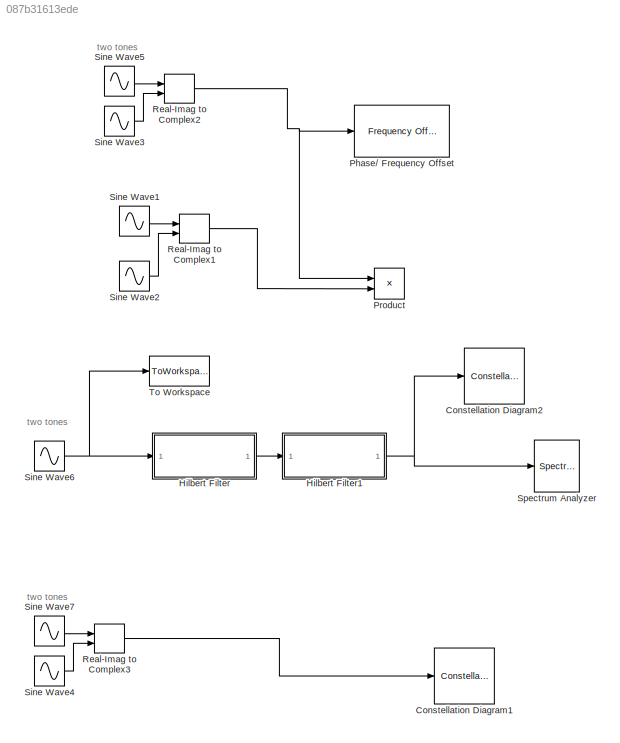
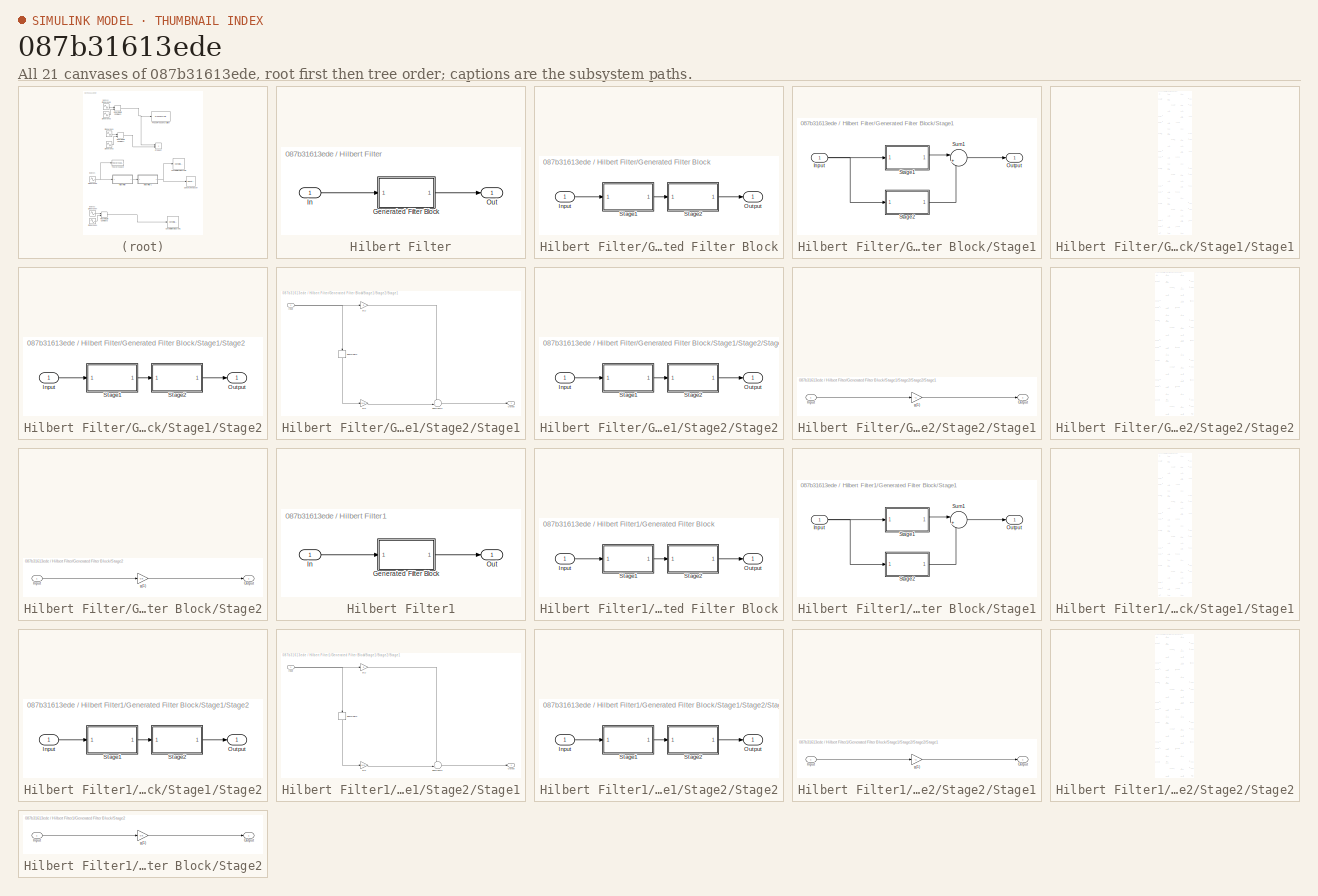
[diagram: thumbnail index - all 21 canvases of the model, root first then tree order]
MODEL slx_087b31613ede
KIND model
BLOCK [ConstellationDiagram] Constellation Diagram1
  Ports = [1]
  ScopeSpecificationString = comm.scopes.ConstellationDiagramBlockCfg('CurrentConfiguration', extmgr.ConfigurationSet(extmgr.Configuration('Core','General UI',true),extmgr.Configuration('Core','Source UI',true),extmgr.Configuration('Sources','WiredSimulink',true),extmgr.Configuration('Sources','Simulink',false),extmgr.Configuration('Sources','File',false),extmgr.Configuration('Sources','Workspace',false),extmgr.Configuration(...<+1687ch>
BLOCK [ConstellationDiagram] Constellation Diagram2
  Ports = [1]
  ScopeSpecificationString = comm.scopes.ConstellationDiagramBlockCfg('CurrentConfiguration', extmgr.ConfigurationSet(extmgr.Configuration('Core','General UI',true),extmgr.Configuration('Core','Source UI',true),extmgr.Configuration('Sources','WiredSimulink',true),extmgr.Configuration('Sources','Simulink',false),extmgr.Configuration('Sources','File',false),extmgr.Configuration('Sources','Workspace',false),extmgr.Configuration(...<+1769ch>
BLOCK [SubSystem] Hilbert Filter
  CopyFcn = fdesignblkfcn(gcbh, {'CopyFcn'});
  DialogController = fdesignblkfcn
  InitFcn = fdesignblkfcn(gcbh, {'InitFcn'});
  Ports = [1, 1]
  RequestExecContextInheritance = off
  UserDataPersistent = on
BLOCK [SubSystem] Hilbert Filter/Generated Filter Block
  Ports = [1, 1]
  RequestExecContextInheritance = off
  Tag = FilterWizardSubSystem
  UserDataPersistent = on
BLOCK [Inport] Hilbert Filter/Generated Filter Block/Input
  IconDisplay = Port number
BLOCK [Outport] Hilbert Filter/Generated Filter Block/Output
  IconDisplay = Port number
BLOCK [SubSystem] Hilbert Filter/Generated Filter Block/Stage1
  Ports = [1, 1]
  RequestExecContextInheritance = off
  Tag = FilterWizardSubSystem
  UserDataPersistent = on
BLOCK [Inport] Hilbert Filter/Generated Filter Block/Stage1/Input
  IconDisplay = Port number
BLOCK [Outport] Hilbert Filter/Generated Filter Block/Stage1/Output
  IconDisplay = Port number
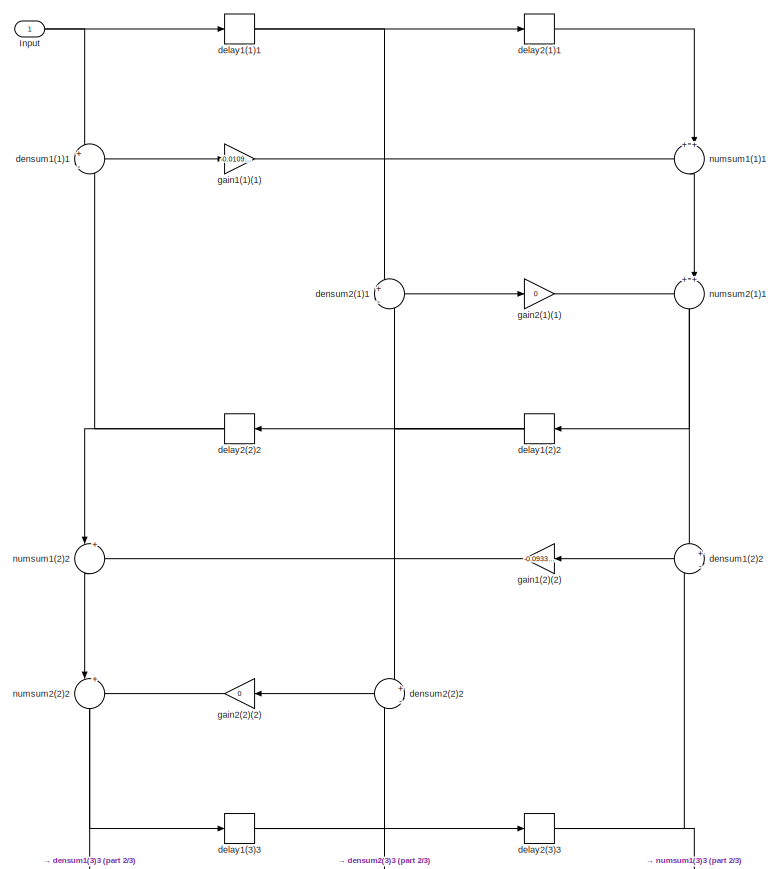
[diagram: Hilbert Filter/Generated Filter Block/Stage1/Stage1 - part 1/3, full width, top band]
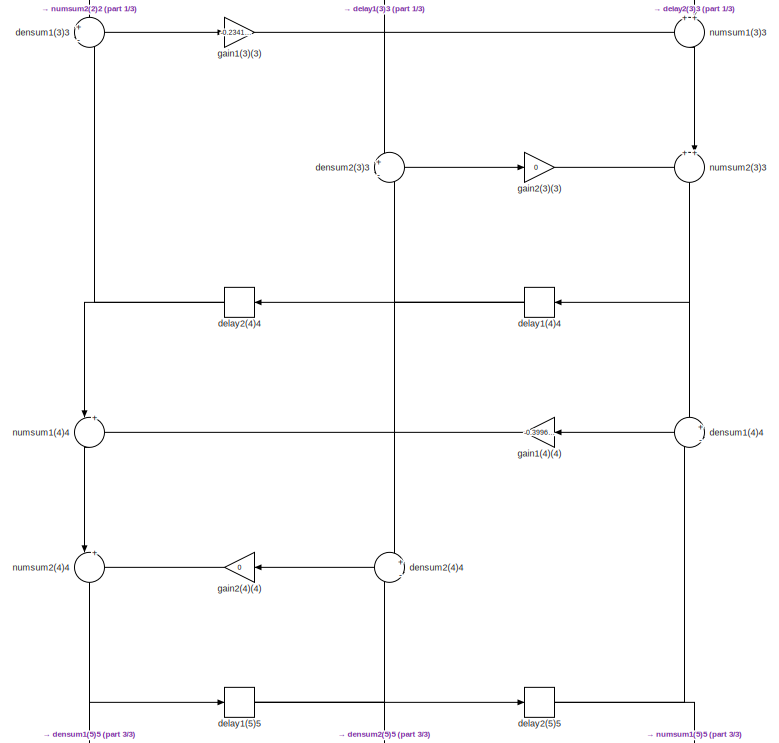
[diagram: Hilbert Filter/Generated Filter Block/Stage1/Stage1 - part 2/3, full width, middle band]
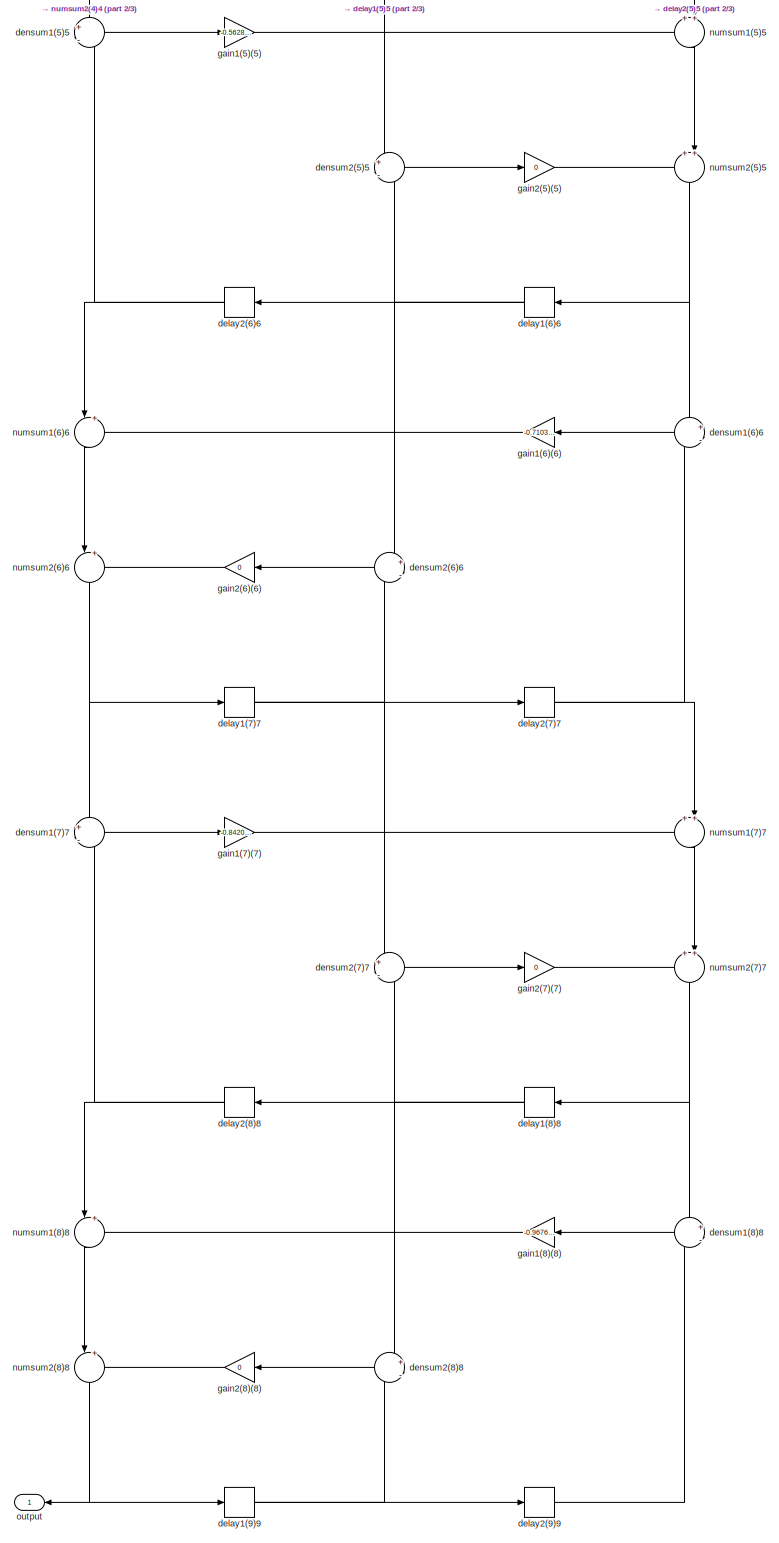
[diagram: Hilbert Filter/Generated Filter Block/Stage1/Stage1 - part 3/3, full width, bottom band]
BLOCK [SubSystem] Hilbert Filter/Generated Filter Block/Stage1/Stage1
  ErrorFcn = dspFilterRealizedInBasicElemsAlgLoopErrFcnCallback
  Ports = [1, 1]
  RequestExecContextInheritance = off
  Tag = FilterWizardSubSystem
  UserDataPersistent = on
BLOCK [Inport] Hilbert Filter/Generated Filter Block/Stage1/Stage1/Input
  IconDisplay = Port number
BLOCK [Delay] Hilbert Filter/Generated Filter Block/Stage1/Stage1/delay1(1)1
  DelayLength = 1
  InitialCondition = 0
  InputPortMap = u0
  Ports = [1, 1]
BLOCK [Delay] Hilbert Filter/Generated Filter Block/Stage1/Stage1/delay1(2)2
  DelayLength = 1
  InitialCondition = 0
  InputPortMap = u0
  Ports = [1, 1]
BLOCK [Delay] Hilbert Filter/Generated Filter Block/Stage1/Stage1/delay1(3)3
  DelayLength = 1
  InitialCondition = 0
  InputPortMap = u0
  Ports = [1, 1]
BLOCK [Delay] Hilbert Filter/Generated Filter Block/Stage1/Stage1/delay1(4)4
  DelayLength = 1
  InitialCondition = 0
  InputPortMap = u0
  Ports = [1, 1]
BLOCK [Delay] Hilbert Filter/Generated Filter Block/Stage1/Stage1/delay1(5)5
  DelayLength = 1
  InitialCondition = 0
  InputPortMap = u0
  Ports = [1, 1]
BLOCK [Delay] Hilbert Filter/Generated Filter Block/Stage1/Stage1/delay1(6)6
  DelayLength = 1
  InitialCondition = 0
  InputPortMap = u0
  Ports = [1, 1]
BLOCK [Delay] Hilbert Filter/Generated Filter Block/Stage1/Stage1/delay1(7)7
  DelayLength = 1
  InitialCondition = 0
  InputPortMap = u0
  Ports = [1, 1]
BLOCK [Delay] Hilbert Filter/Generated Filter Block/Stage1/Stage1/delay1(8)8
  DelayLength = 1
  InitialCondition = 0
  InputPortMap = u0
  Ports = [1, 1]
BLOCK [Delay] Hilbert Filter/Generated Filter Block/Stage1/Stage1/delay1(9)9
  DelayLength = 1
  InitialCondition = 0
  InputPortMap = u0
  Ports = [1, 1]
BLOCK [Delay] Hilbert Filter/Generated Filter Block/Stage1/Stage1/delay2(1)1
  DelayLength = 1
  InitialCondition = 0
  InputPortMap = u0
  Ports = [1, 1]
BLOCK [Delay] Hilbert Filter/Generated Filter Block/Stage1/Stage1/delay2(2)2
  DelayLength = 1
  InitialCondition = 0
  InputPortMap = u0
  Ports = [1, 1]
BLOCK [Delay] Hilbert Filter/Generated Filter Block/Stage1/Stage1/delay2(3)3
  DelayLength = 1
  InitialCondition = 0
  InputPortMap = u0
  Ports = [1, 1]
BLOCK [Delay] Hilbert Filter/Generated Filter Block/Stage1/Stage1/delay2(4)4
  DelayLength = 1
  InitialCondition = 0
  InputPortMap = u0
  Ports = [1, 1]
BLOCK [Delay] Hilbert Filter/Generated Filter Block/Stage1/Stage1/delay2(5)5
  DelayLength = 1
  InitialCondition = 0
  InputPortMap = u0
  Ports = [1, 1]
BLOCK [Delay] Hilbert Filter/Generated Filter Block/Stage1/Stage1/delay2(6)6
  DelayLength = 1
  InitialCondition = 0
  InputPortMap = u0
  Ports = [1, 1]
BLOCK [Delay] Hilbert Filter/Generated Filter Block/Stage1/Stage1/delay2(7)7
  DelayLength = 1
  InitialCondition = 0
  InputPortMap = u0
  Ports = [1, 1]
BLOCK [Delay] Hilbert Filter/Generated Filter Block/Stage1/Stage1/delay2(8)8
  DelayLength = 1
  InitialCondition = 0
  InputPortMap = u0
  Ports = [1, 1]
BLOCK [Delay] Hilbert Filter/Generated Filter Block/Stage1/Stage1/delay2(9)9
  DelayLength = 1
  InitialCondition = 0
  InputPortMap = u0
  Ports = [1, 1]
BLOCK [Sum] Hilbert Filter/Generated Filter Block/Stage1/Stage1/densum1(1)1
  IconShape = round
  InputSameDT = off
  Inputs = +|-
  Ports = [2, 1]
  RndMeth = Nearest
BLOCK [Sum] Hilbert Filter/Generated Filter Block/Stage1/Stage1/densum1(2)2
  IconShape = round
  InputSameDT = off
  Inputs = +|-
  Ports = [2, 1]
  RndMeth = Nearest
BLOCK [Sum] Hilbert Filter/Generated Filter Block/Stage1/Stage1/densum1(3)3
  IconShape = round
  InputSameDT = off
  Inputs = +|-
  Ports = [2, 1]
  RndMeth = Nearest
BLOCK [Sum] Hilbert Filter/Generated Filter Block/Stage1/Stage1/densum1(4)4
  IconShape = round
  InputSameDT = off
  Inputs = +|-
  Ports = [2, 1]
  RndMeth = Nearest
BLOCK [Sum] Hilbert Filter/Generated Filter Block/Stage1/Stage1/densum1(5)5
  IconShape = round
  InputSameDT = off
  Inputs = +|-
  Ports = [2, 1]
  RndMeth = Nearest
BLOCK [Sum] Hilbert Filter/Generated Filter Block/Stage1/Stage1/densum1(6)6
  IconShape = round
  InputSameDT = off
  Inputs = +|-
  Ports = [2, 1]
  RndMeth = Nearest
BLOCK [Sum] Hilbert Filter/Generated Filter Block/Stage1/Stage1/densum1(7)7
  IconShape = round
  InputSameDT = off
  Inputs = +|-
  Ports = [2, 1]
  RndMeth = Nearest
BLOCK [Sum] Hilbert Filter/Generated Filter Block/Stage1/Stage1/densum1(8)8
  IconShape = round
  InputSameDT = off
  Inputs = +|-
  Ports = [2, 1]
  RndMeth = Nearest
BLOCK [Sum] Hilbert Filter/Generated Filter Block/Stage1/Stage1/densum2(1)1
  IconShape = round
  InputSameDT = off
  Inputs = +|-
  Ports = [2, 1]
  RndMeth = Nearest
BLOCK [Sum] Hilbert Filter/Generated Filter Block/Stage1/Stage1/densum2(2)2
  IconShape = round
  InputSameDT = off
  Inputs = +|-
  Ports = [2, 1]
  RndMeth = Nearest
BLOCK [Sum] Hilbert Filter/Generated Filter Block/Stage1/Stage1/densum2(3)3
  IconShape = round
  InputSameDT = off
  Inputs = +|-
  Ports = [2, 1]
  RndMeth = Nearest
BLOCK [Sum] Hilbert Filter/Generated Filter Block/Stage1/Stage1/densum2(4)4
  IconShape = round
  InputSameDT = off
  Inputs = +|-
  Ports = [2, 1]
  RndMeth = Nearest
BLOCK [Sum] Hilbert Filter/Generated Filter Block/Stage1/Stage1/densum2(5)5
  IconShape = round
  InputSameDT = off
  Inputs = +|-
  Ports = [2, 1]
  RndMeth = Nearest
BLOCK [Sum] Hilbert Filter/Generated Filter Block/Stage1/Stage1/densum2(6)6
  IconShape = round
  InputSameDT = off
  Inputs = +|-
  Ports = [2, 1]
  RndMeth = Nearest
BLOCK [Sum] Hilbert Filter/Generated Filter Block/Stage1/Stage1/densum2(7)7
  IconShape = round
  InputSameDT = off
  Inputs = +|-
  Ports = [2, 1]
  RndMeth = Nearest
BLOCK [Sum] Hilbert Filter/Generated Filter Block/Stage1/Stage1/densum2(8)8
  IconShape = round
  InputSameDT = off
  Inputs = +|-
  Ports = [2, 1]
  RndMeth = Nearest
BLOCK [Gain] Hilbert Filter/Generated Filter Block/Stage1/Stage1/gain1(1)(1)
  Gain = -0.010950436973184801
  ParamDataTypeStr = double
  RndMeth = Nearest
BLOCK [Gain] Hilbert Filter/Generated Filter Block/Stage1/Stage1/gain1(2)(2)
  Gain = -0.093334236255435646
  ParamDataTypeStr = double
  RndMeth = Nearest
BLOCK [Gain] Hilbert Filter/Generated Filter Block/Stage1/Stage1/gain1(3)(3)
  Gain = -0.23410977281798603
  ParamDataTypeStr = double
  RndMeth = Nearest
BLOCK [Gain] Hilbert Filter/Generated Filter Block/Stage1/Stage1/gain1(4)(4)
  Gain = -0.399691910960775
  ParamDataTypeStr = double
  RndMeth = Nearest
BLOCK [Gain] Hilbert Filter/Generated Filter Block/Stage1/Stage1/gain1(5)(5)
  Gain = -0.56288910028092354
  ParamDataTypeStr = double
  RndMeth = Nearest
BLOCK [Gain] Hilbert Filter/Generated Filter Block/Stage1/Stage1/gain1(6)(6)
  Gain = -0.71037779161235193
  ParamDataTypeStr = double
  RndMeth = Nearest
BLOCK [Gain] Hilbert Filter/Generated Filter Block/Stage1/Stage1/gain1(7)(7)
  Gain = -0.84203409261411277
  ParamDataTypeStr = double
  RndMeth = Nearest
BLOCK [Gain] Hilbert Filter/Generated Filter Block/Stage1/Stage1/gain1(8)(8)
  Gain = -0.96762108186982065
  ParamDataTypeStr = double
  RndMeth = Nearest
BLOCK [Gain] Hilbert Filter/Generated Filter Block/Stage1/Stage1/gain2(1)(1)
  Gain = 0
  ParamDataTypeStr = double
  RndMeth = Nearest
BLOCK [Gain] Hilbert Filter/Generated Filter Block/Stage1/Stage1/gain2(2)(2)
  Gain = 0
  ParamDataTypeStr = double
  RndMeth = Nearest
BLOCK [Gain] Hilbert Filter/Generated Filter Block/Stage1/Stage1/gain2(3)(3)
  Gain = 0
  ParamDataTypeStr = double
  RndMeth = Nearest
BLOCK [Gain] Hilbert Filter/Generated Filter Block/Stage1/Stage1/gain2(4)(4)
  Gain = 0
  ParamDataTypeStr = double
  RndMeth = Nearest
BLOCK [Gain] Hilbert Filter/Generated Filter Block/Stage1/Stage1/gain2(5)(5)
  Gain = 0
  ParamDataTypeStr = double
  RndMeth = Nearest
BLOCK [Gain] Hilbert Filter/Generated Filter Block/Stage1/Stage1/gain2(6)(6)
  Gain = 0
  ParamDataTypeStr = double
  RndMeth = Nearest
BLOCK [Gain] Hilbert Filter/Generated Filter Block/Stage1/Stage1/gain2(7)(7)
  Gain = 0
  ParamDataTypeStr = double
  RndMeth = Nearest
BLOCK [Gain] Hilbert Filter/Generated Filter Block/Stage1/Stage1/gain2(8)(8)
  Gain = 0
  ParamDataTypeStr = double
  RndMeth = Nearest
BLOCK [Sum] Hilbert Filter/Generated Filter Block/Stage1/Stage1/numsum1(1)1
  IconShape = round
  InputSameDT = off
  Inputs = ++|
  Ports = [2, 1]
  RndMeth = Nearest
BLOCK [Sum] Hilbert Filter/Generated Filter Block/Stage1/Stage1/numsum1(2)2
  IconShape = round
  InputSameDT = off
  Inputs = |++
  Ports = [2, 1]
  RndMeth = Nearest
BLOCK [Sum] Hilbert Filter/Generated Filter Block/Stage1/Stage1/numsum1(3)3
  IconShape = round
  InputSameDT = off
  Inputs = ++|
  Ports = [2, 1]
  RndMeth = Nearest
BLOCK [Sum] Hilbert Filter/Generated Filter Block/Stage1/Stage1/numsum1(4)4
  IconShape = round
  InputSameDT = off
  Inputs = |++
  Ports = [2, 1]
  RndMeth = Nearest
BLOCK [Sum] Hilbert Filter/Generated Filter Block/Stage1/Stage1/numsum1(5)5
  IconShape = round
  InputSameDT = off
  Inputs = ++|
  Ports = [2, 1]
  RndMeth = Nearest
BLOCK [Sum] Hilbert Filter/Generated Filter Block/Stage1/Stage1/numsum1(6)6
  IconShape = round
  InputSameDT = off
  Inputs = |++
  Ports = [2, 1]
  RndMeth = Nearest
BLOCK [Sum] Hilbert Filter/Generated Filter Block/Stage1/Stage1/numsum1(7)7
  IconShape = round
  InputSameDT = off
  Inputs = ++|
  Ports = [2, 1]
  RndMeth = Nearest
BLOCK [Sum] Hilbert Filter/Generated Filter Block/Stage1/Stage1/numsum1(8)8
  IconShape = round
  InputSameDT = off
  Inputs = |++
  Ports = [2, 1]
  RndMeth = Nearest
BLOCK [Sum] Hilbert Filter/Generated Filter Block/Stage1/Stage1/numsum2(1)1
  IconShape = round
  InputSameDT = off
  Inputs = ++|
  Ports = [2, 1]
  RndMeth = Nearest
BLOCK [Sum] Hilbert Filter/Generated Filter Block/Stage1/Stage1/numsum2(2)2
  IconShape = round
  InputSameDT = off
  Inputs = |++
  Ports = [2, 1]
  RndMeth = Nearest
BLOCK [Sum] Hilbert Filter/Generated Filter Block/Stage1/Stage1/numsum2(3)3
  IconShape = round
  InputSameDT = off
  Inputs = ++|
  Ports = [2, 1]
  RndMeth = Nearest
BLOCK [Sum] Hilbert Filter/Generated Filter Block/Stage1/Stage1/numsum2(4)4
  IconShape = round
  InputSameDT = off
  Inputs = |++
  Ports = [2, 1]
  RndMeth = Nearest
BLOCK [Sum] Hilbert Filter/Generated Filter Block/Stage1/Stage1/numsum2(5)5
  IconShape = round
  InputSameDT = off
  Inputs = ++|
  Ports = [2, 1]
  RndMeth = Nearest
BLOCK [Sum] Hilbert Filter/Generated Filter Block/Stage1/Stage1/numsum2(6)6
  IconShape = round
  InputSameDT = off
  Inputs = |++
  Ports = [2, 1]
  RndMeth = Nearest
BLOCK [Sum] Hilbert Filter/Generated Filter Block/Stage1/Stage1/numsum2(7)7
  IconShape = round
  InputSameDT = off
  Inputs = ++|
  Ports = [2, 1]
  RndMeth = Nearest
BLOCK [Sum] Hilbert Filter/Generated Filter Block/Stage1/Stage1/numsum2(8)8
  IconShape = round
  InputSameDT = off
  Inputs = |++
  Ports = [2, 1]
  RndMeth = Nearest
BLOCK [Outport] Hilbert Filter/Generated Filter Block/Stage1/Stage1/output
  IconDisplay = Port number
BLOCK [SubSystem] Hilbert Filter/Generated Filter Block/Stage1/Stage2
  Ports = [1, 1]
  RequestExecContextInheritance = off
  Tag = FilterWizardSubSystem
  UserDataPersistent = on
BLOCK [Inport] Hilbert Filter/Generated Filter Block/Stage1/Stage2/Input
  IconDisplay = Port number
BLOCK [Outport] Hilbert Filter/Generated Filter Block/Stage1/Stage2/Output
  IconDisplay = Port number
BLOCK [SubSystem] Hilbert Filter/Generated Filter Block/Stage1/Stage2/Stage1
  ErrorFcn = dspFilterRealizedInBasicElemsAlgLoopErrFcnCallback
  Ports = [1, 1]
  RequestExecContextInheritance = off
  Tag = FilterWizardSubSystem
  UserDataPersistent = on
BLOCK [Delay] Hilbert Filter/Generated Filter Block/Stage1/Stage2/Stage1/BodyDelay2
  DelayLength = 1
  InitialCondition = 0
  InputPortMap = u0
  Ports = [1, 1]
BLOCK [Sum] Hilbert Filter/Generated Filter Block/Stage1/Stage2/Stage1/BodyLSum2
  IconShape = round
  InputSameDT = off
  Inputs = ++|
  Ports = [2, 1]
  RndMeth = Nearest
BLOCK [Inport] Hilbert Filter/Generated Filter Block/Stage1/Stage2/Stage1/Input
  IconDisplay = Port number
BLOCK [Outport] Hilbert Filter/Generated Filter Block/Stage1/Stage2/Stage1/Output
  IconDisplay = Port number
BLOCK [Gain] Hilbert Filter/Generated Filter Block/Stage1/Stage2/Stage1/b(1)
  Gain = 0
  ParamDataTypeStr = double
  RndMeth = Nearest
BLOCK [Gain] Hilbert Filter/Generated Filter Block/Stage1/Stage2/Stage1/b(2)
  Gain = 0+1i
  ParamDataTypeStr = double
  RndMeth = Nearest
BLOCK [SubSystem] Hilbert Filter/Generated Filter Block/Stage1/Stage2/Stage2
  Ports = [1, 1]
  RequestExecContextInheritance = off
  Tag = FilterWizardSubSystem
  UserDataPersistent = on
BLOCK [Inport] Hilbert Filter/Generated Filter Block/Stage1/Stage2/Stage2/Input
  IconDisplay = Port number
BLOCK [Outport] Hilbert Filter/Generated Filter Block/Stage1/Stage2/Stage2/Output
  IconDisplay = Port number
BLOCK [SubSystem] Hilbert Filter/Generated Filter Block/Stage1/Stage2/Stage2/Stage1
  ErrorFcn = dspFilterRealizedInBasicElemsAlgLoopErrFcnCallback
  Ports = [1, 1]
  RequestExecContextInheritance = off
  Tag = FilterWizardSubSystem
  UserDataPersistent = on
BLOCK [Inport] Hilbert Filter/Generated Filter Block/Stage1/Stage2/Stage2/Stage1/Input
  IconDisplay = Port number
BLOCK [Outport] Hilbert Filter/Generated Filter Block/Stage1/Stage2/Stage2/Stage1/Output
  IconDisplay = Port number
BLOCK [Gain] Hilbert Filter/Generated Filter Block/Stage1/Stage2/Stage2/Stage1/g(1)
  Gain = -1
  ParamDataTypeStr = double
  RndMeth = Nearest
BLOCK [SubSystem] Hilbert Filter/Generated Filter Block/Stage1/Stage2/Stage2/Stage2
  ErrorFcn = dspFilterRealizedInBasicElemsAlgLoopErrFcnCallback
  Ports = [1, 1]
  RequestExecContextInheritance = off
  Tag = FilterWizardSubSystem
  UserDataPersistent = on
BLOCK [Inport] Hilbert Filter/Generated Filter Block/Stage1/Stage2/Stage2/Stage2/Input
  IconDisplay = Port number
BLOCK [Delay] Hilbert Filter/Generated Filter Block/Stage1/Stage2/Stage2/Stage2/delay1(1)1
  DelayLength = 1
  InitialCondition = 0
  InputPortMap = u0
  Ports = [1, 1]
BLOCK [Delay] Hilbert Filter/Generated Filter Block/Stage1/Stage2/Stage2/Stage2/delay1(2)2
  DelayLength = 1
  InitialCondition = 0
  InputPortMap = u0
  Ports = [1, 1]
BLOCK [Delay] Hilbert Filter/Generated Filter Block/Stage1/Stage2/Stage2/Stage2/delay1(3)3
  DelayLength = 1
  InitialCondition = 0
  InputPortMap = u0
  Ports = [1, 1]
BLOCK [Delay] Hilbert Filter/Generated Filter Block/Stage1/Stage2/Stage2/Stage2/delay1(4)4
  DelayLength = 1
  InitialCondition = 0
  InputPortMap = u0
  Ports = [1, 1]
BLOCK [Delay] Hilbert Filter/Generated Filter Block/Stage1/Stage2/Stage2/Stage2/delay1(5)5
  DelayLength = 1
  InitialCondition = 0
  InputPortMap = u0
  Ports = [1, 1]
BLOCK [Delay] Hilbert Filter/Generated Filter Block/Stage1/Stage2/Stage2/Stage2/delay1(6)6
  DelayLength = 1
  InitialCondition = 0
  InputPortMap = u0
  Ports = [1, 1]
BLOCK [Delay] Hilbert Filter/Generated Filter Block/Stage1/Stage2/Stage2/Stage2/delay1(7)7
  DelayLength = 1
  InitialCondition = 0
  InputPortMap = u0
  Ports = [1, 1]
BLOCK [Delay] Hilbert Filter/Generated Filter Block/Stage1/Stage2/Stage2/Stage2/delay1(8)8
  DelayLength = 1
  InitialCondition = 0
  InputPortMap = u0
  Ports = [1, 1]
BLOCK [Delay] Hilbert Filter/Generated Filter Block/Stage1/Stage2/Stage2/Stage2/delay2(1)1
  DelayLength = 1
  InitialCondition = 0
  InputPortMap = u0
  Ports = [1, 1]
BLOCK [Delay] Hilbert Filter/Generated Filter Block/Stage1/Stage2/Stage2/Stage2/delay2(2)2
  DelayLength = 1
  InitialCondition = 0
  InputPortMap = u0
  Ports = [1, 1]
BLOCK [Delay] Hilbert Filter/Generated Filter Block/Stage1/Stage2/Stage2/Stage2/delay2(3)3
  DelayLength = 1
  InitialCondition = 0
  InputPortMap = u0
  Ports = [1, 1]
BLOCK [Delay] Hilbert Filter/Generated Filter Block/Stage1/Stage2/Stage2/Stage2/delay2(4)4
  DelayLength = 1
  InitialCondition = 0
  InputPortMap = u0
  Ports = [1, 1]
BLOCK [Delay] Hilbert Filter/Generated Filter Block/Stage1/Stage2/Stage2/Stage2/delay2(5)5
  DelayLength = 1
  InitialCondition = 0
  InputPortMap = u0
  Ports = [1, 1]
BLOCK [Delay] Hilbert Filter/Generated Filter Block/Stage1/Stage2/Stage2/Stage2/delay2(6)6
  DelayLength = 1
  InitialCondition = 0
  InputPortMap = u0
  Ports = [1, 1]
BLOCK [Delay] Hilbert Filter/Generated Filter Block/Stage1/Stage2/Stage2/Stage2/delay2(7)7
  DelayLength = 1
  InitialCondition = 0
  InputPortMap = u0
  Ports = [1, 1]
BLOCK [Delay] Hilbert Filter/Generated Filter Block/Stage1/Stage2/Stage2/Stage2/delay2(8)8
  DelayLength = 1
  InitialCondition = 0
  InputPortMap = u0
  Ports = [1, 1]
BLOCK [Sum] Hilbert Filter/Generated Filter Block/Stage1/Stage2/Stage2/Stage2/densum1(1)1
  IconShape = round
  InputSameDT = off
  Inputs = +|-
  Ports = [2, 1]
  RndMeth = Nearest
BLOCK [Sum] Hilbert Filter/Generated Filter Block/Stage1/Stage2/Stage2/Stage2/densum1(2)2
  IconShape = round
  InputSameDT = off
  Inputs = +|-
  Ports = [2, 1]
  RndMeth = Nearest
BLOCK [Sum] Hilbert Filter/Generated Filter Block/Stage1/Stage2/Stage2/Stage2/densum1(3)3
  IconShape = round
  InputSameDT = off
  Inputs = +|-
  Ports = [2, 1]
  RndMeth = Nearest
BLOCK [Sum] Hilbert Filter/Generated Filter Block/Stage1/Stage2/Stage2/Stage2/densum1(4)4
  IconShape = round
  InputSameDT = off
  Inputs = +|-
  Ports = [2, 1]
  RndMeth = Nearest
BLOCK [Sum] Hilbert Filter/Generated Filter Block/Stage1/Stage2/Stage2/Stage2/densum1(5)5
  IconShape = round
  InputSameDT = off
  Inputs = +|-
  Ports = [2, 1]
  RndMeth = Nearest
BLOCK [Sum] Hilbert Filter/Generated Filter Block/Stage1/Stage2/Stage2/Stage2/densum1(6)6
  IconShape = round
  InputSameDT = off
  Inputs = +|-
  Ports = [2, 1]
  RndMeth = Nearest
BLOCK [Sum] Hilbert Filter/Generated Filter Block/Stage1/Stage2/Stage2/Stage2/densum1(7)7
  IconShape = round
  InputSameDT = off
  Inputs = +|-
  Ports = [2, 1]
  RndMeth = Nearest
BLOCK [Sum] Hilbert Filter/Generated Filter Block/Stage1/Stage2/Stage2/Stage2/densum2(1)1
  IconShape = round
  InputSameDT = off
  Inputs = +|-
  Ports = [2, 1]
  RndMeth = Nearest
BLOCK [Sum] Hilbert Filter/Generated Filter Block/Stage1/Stage2/Stage2/Stage2/densum2(2)2
  IconShape = round
  InputSameDT = off
  Inputs = +|-
  Ports = [2, 1]
  RndMeth = Nearest
BLOCK [Sum] Hilbert Filter/Generated Filter Block/Stage1/Stage2/Stage2/Stage2/densum2(3)3
  IconShape = round
  InputSameDT = off
  Inputs = +|-
  Ports = [2, 1]
  RndMeth = Nearest
BLOCK [Sum] Hilbert Filter/Generated Filter Block/Stage1/Stage2/Stage2/Stage2/densum2(4)4
  IconShape = round
  InputSameDT = off
  Inputs = +|-
  Ports = [2, 1]
  RndMeth = Nearest
BLOCK [Sum] Hilbert Filter/Generated Filter Block/Stage1/Stage2/Stage2/Stage2/densum2(5)5
  IconShape = round
  InputSameDT = off
  Inputs = +|-
  Ports = [2, 1]
  RndMeth = Nearest
BLOCK [Sum] Hilbert Filter/Generated Filter Block/Stage1/Stage2/Stage2/Stage2/densum2(6)6
  IconShape = round
  InputSameDT = off
  Inputs = +|-
  Ports = [2, 1]
  RndMeth = Nearest
BLOCK [Sum] Hilbert Filter/Generated Filter Block/Stage1/Stage2/Stage2/Stage2/densum2(7)7
  IconShape = round
  InputSameDT = off
  Inputs = +|-
  Ports = [2, 1]
  RndMeth = Nearest
BLOCK [Gain] Hilbert Filter/Generated Filter Block/Stage1/Stage2/Stage2/Stage2/gain1(1)(1)
  Gain = -0.042904944031649322
  ParamDataTypeStr = double
  RndMeth = Nearest
BLOCK [Gain] Hilbert Filter/Generated Filter Block/Stage1/Stage2/Stage2/Stage2/gain1(2)(2)
  Gain = -0.15851285525238301
  ParamDataTypeStr = double
  RndMeth = Nearest
BLOCK [Gain] Hilbert Filter/Generated Filter Block/Stage1/Stage2/Stage2/Stage2/gain1(3)(3)
  Gain = -0.31578769921985456
  ParamDataTypeStr = double
  RndMeth = Nearest
BLOCK [Gain] Hilbert Filter/Generated Filter Block/Stage1/Stage2/Stage2/Stage2/gain1(4)(4)
  Gain = -0.48276583745472768
  ParamDataTypeStr = double
  RndMeth = Nearest
BLOCK [Gain] Hilbert Filter/Generated Filter Block/Stage1/Stage2/Stage2/Stage2/gain1(5)(5)
  Gain = -0.63887449831122922
  ParamDataTypeStr = double
  RndMeth = Nearest
BLOCK [Gain] Hilbert Filter/Generated Filter Block/Stage1/Stage2/Stage2/Stage2/gain1(6)(6)
  Gain = -0.77777288596986116
  ParamDataTypeStr = double
  RndMeth = Nearest
BLOCK [Gain] Hilbert Filter/Generated Filter Block/Stage1/Stage2/Stage2/Stage2/gain1(7)(7)
  Gain = -0.90465457400821292
  ParamDataTypeStr = double
  RndMeth = Nearest
BLOCK [Gain] Hilbert Filter/Generated Filter Block/Stage1/Stage2/Stage2/Stage2/gain2(1)(1)
  Gain = 0
  ParamDataTypeStr = double
  RndMeth = Nearest
BLOCK [Gain] Hilbert Filter/Generated Filter Block/Stage1/Stage2/Stage2/Stage2/gain2(2)(2)
  Gain = 0
  ParamDataTypeStr = double
  RndMeth = Nearest
BLOCK [Gain] Hilbert Filter/Generated Filter Block/Stage1/Stage2/Stage2/Stage2/gain2(3)(3)
  Gain = 0
  ParamDataTypeStr = double
  RndMeth = Nearest
BLOCK [Gain] Hilbert Filter/Generated Filter Block/Stage1/Stage2/Stage2/Stage2/gain2(4)(4)
  Gain = 0
  ParamDataTypeStr = double
  RndMeth = Nearest
BLOCK [Gain] Hilbert Filter/Generated Filter Block/Stage1/Stage2/Stage2/Stage2/gain2(5)(5)
  Gain = 0
  ParamDataTypeStr = double
  RndMeth = Nearest
BLOCK [Gain] Hilbert Filter/Generated Filter Block/Stage1/Stage2/Stage2/Stage2/gain2(6)(6)
  Gain = 0
  ParamDataTypeStr = double
  RndMeth = Nearest
BLOCK [Gain] Hilbert Filter/Generated Filter Block/Stage1/Stage2/Stage2/Stage2/gain2(7)(7)
  Gain = 0
  ParamDataTypeStr = double
  RndMeth = Nearest
BLOCK [Sum] Hilbert Filter/Generated Filter Block/Stage1/Stage2/Stage2/Stage2/numsum1(1)1
  IconShape = round
  InputSameDT = off
  Inputs = ++|
  Ports = [2, 1]
  RndMeth = Nearest
BLOCK [Sum] Hilbert Filter/Generated Filter Block/Stage1/Stage2/Stage2/Stage2/numsum1(2)2
  IconShape = round
  InputSameDT = off
  Inputs = |++
  Ports = [2, 1]
  RndMeth = Nearest
BLOCK [Sum] Hilbert Filter/Generated Filter Block/Stage1/Stage2/Stage2/Stage2/numsum1(3)3
  IconShape = round
  InputSameDT = off
  Inputs = ++|
  Ports = [2, 1]
  RndMeth = Nearest
BLOCK [Sum] Hilbert Filter/Generated Filter Block/Stage1/Stage2/Stage2/Stage2/numsum1(4)4
  IconShape = round
  InputSameDT = off
  Inputs = |++
  Ports = [2, 1]
  RndMeth = Nearest
BLOCK [Sum] Hilbert Filter/Generated Filter Block/Stage1/Stage2/Stage2/Stage2/numsum1(5)5
  IconShape = round
  InputSameDT = off
  Inputs = ++|
  Ports = [2, 1]
  RndMeth = Nearest
BLOCK [Sum] Hilbert Filter/Generated Filter Block/Stage1/Stage2/Stage2/Stage2/numsum1(6)6
  IconShape = round
  InputSameDT = off
  Inputs = |++
  Ports = [2, 1]
  RndMeth = Nearest
BLOCK [Sum] Hilbert Filter/Generated Filter Block/Stage1/Stage2/Stage2/Stage2/numsum1(7)7
  IconShape = round
  InputSameDT = off
  Inputs = ++|
  Ports = [2, 1]
  RndMeth = Nearest
BLOCK [Sum] Hilbert Filter/Generated Filter Block/Stage1/Stage2/Stage2/Stage2/numsum2(1)1
  IconShape = round
  InputSameDT = off
  Inputs = ++|
  Ports = [2, 1]
  RndMeth = Nearest
BLOCK [Sum] Hilbert Filter/Generated Filter Block/Stage1/Stage2/Stage2/Stage2/numsum2(2)2
  IconShape = round
  InputSameDT = off
  Inputs = |++
  Ports = [2, 1]
  RndMeth = Nearest
BLOCK [Sum] Hilbert Filter/Generated Filter Block/Stage1/Stage2/Stage2/Stage2/numsum2(3)3
  IconShape = round
  InputSameDT = off
  Inputs = ++|
  Ports = [2, 1]
  RndMeth = Nearest
BLOCK [Sum] Hilbert Filter/Generated Filter Block/Stage1/Stage2/Stage2/Stage2/numsum2(4)4
  IconShape = round
  InputSameDT = off
  Inputs = |++
  Ports = [2, 1]
  RndMeth = Nearest
BLOCK [Sum] Hilbert Filter/Generated Filter Block/Stage1/Stage2/Stage2/Stage2/numsum2(5)5
  IconShape = round
  InputSameDT = off
  Inputs = ++|
  Ports = [2, 1]
  RndMeth = Nearest
BLOCK [Sum] Hilbert Filter/Generated Filter Block/Stage1/Stage2/Stage2/Stage2/numsum2(6)6
  IconShape = round
  InputSameDT = off
  Inputs = |++
  Ports = [2, 1]
  RndMeth = Nearest
BLOCK [Sum] Hilbert Filter/Generated Filter Block/Stage1/Stage2/Stage2/Stage2/numsum2(7)7
  IconShape = round
  InputSameDT = off
  Inputs = ++|
  Ports = [2, 1]
  RndMeth = Nearest
BLOCK [Outport] Hilbert Filter/Generated Filter Block/Stage1/Stage2/Stage2/Stage2/output
  IconDisplay = Port number
BLOCK [Sum] Hilbert Filter/Generated Filter Block/Stage1/Sum1
  IconShape = round
  InputSameDT = off
  Inputs = |++
  Ports = [2, 1]
  RndMeth = Nearest
BLOCK [SubSystem] Hilbert Filter/Generated Filter Block/Stage2
  ErrorFcn = dspFilterRealizedInBasicElemsAlgLoopErrFcnCallback
  Ports = [1, 1]
  RequestExecContextInheritance = off
  Tag = FilterWizardSubSystem
  UserDataPersistent = on
BLOCK [Inport] Hilbert Filter/Generated Filter Block/Stage2/Input
  IconDisplay = Port number
BLOCK [Outport] Hilbert Filter/Generated Filter Block/Stage2/Output
  IconDisplay = Port number
BLOCK [Gain] Hilbert Filter/Generated Filter Block/Stage2/g(1)
  Gain = 0.5
  ParamDataTypeStr = double
  RndMeth = Nearest
BLOCK [Inport] Hilbert Filter/In
  IconDisplay = Port number
BLOCK [Outport] Hilbert Filter/Out
  IconDisplay = Port number
BLOCK [SubSystem] Hilbert Filter1
  CopyFcn = fdesignblkfcn(gcbh, {'CopyFcn'});
  DialogController = fdesignblkfcn
  InitFcn = fdesignblkfcn(gcbh, {'InitFcn'});
  Ports = [1, 1]
  RequestExecContextInheritance = off
  UserDataPersistent = on
BLOCK [SubSystem] Hilbert Filter1/Generated Filter Block
  Ports = [1, 1]
  RequestExecContextInheritance = off
  Tag = FilterWizardSubSystem
  UserDataPersistent = on
BLOCK [Inport] Hilbert Filter1/Generated Filter Block/Input
  IconDisplay = Port number
BLOCK [Outport] Hilbert Filter1/Generated Filter Block/Output
  IconDisplay = Port number
BLOCK [SubSystem] Hilbert Filter1/Generated Filter Block/Stage1
  Ports = [1, 1]
  RequestExecContextInheritance = off
  Tag = FilterWizardSubSystem
  UserDataPersistent = on
BLOCK [Inport] Hilbert Filter1/Generated Filter Block/Stage1/Input
  IconDisplay = Port number
BLOCK [Outport] Hilbert Filter1/Generated Filter Block/Stage1/Output
  IconDisplay = Port number
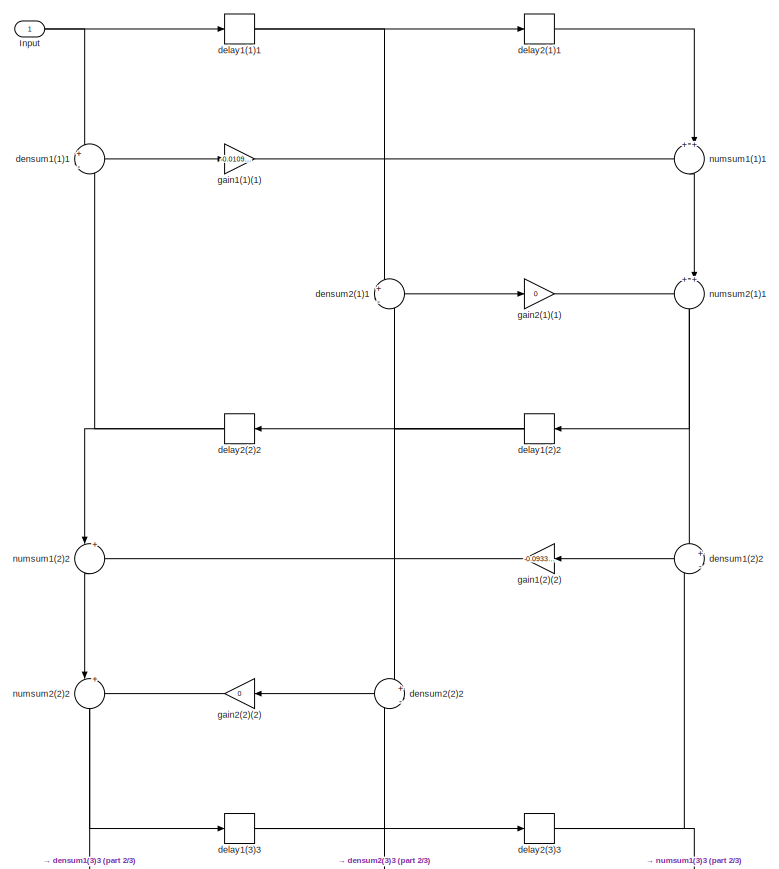
[diagram: Hilbert Filter1/Generated Filter Block/Stage1/Stage1 - part 1/3, full width, top band]
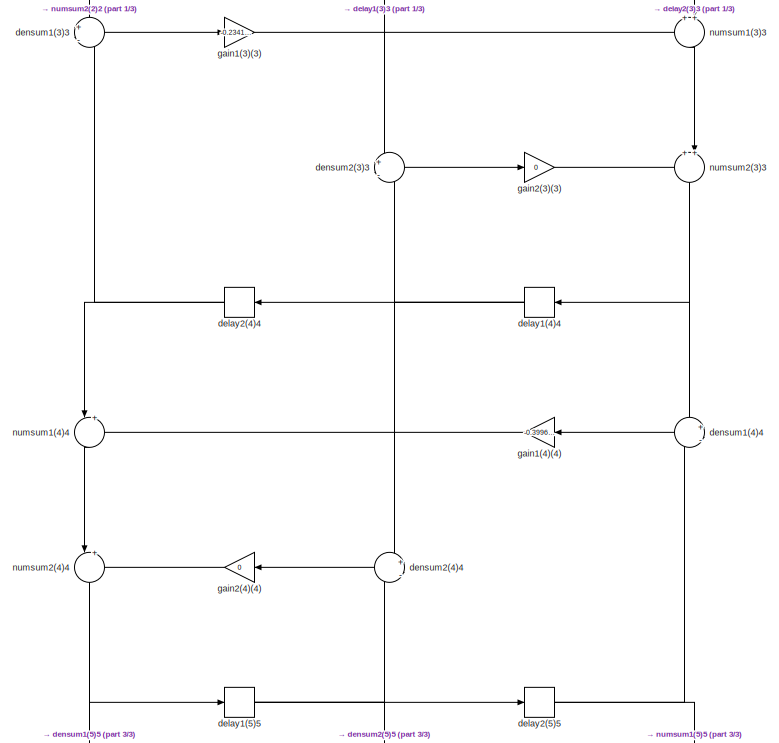
[diagram: Hilbert Filter1/Generated Filter Block/Stage1/Stage1 - part 2/3, full width, middle band]
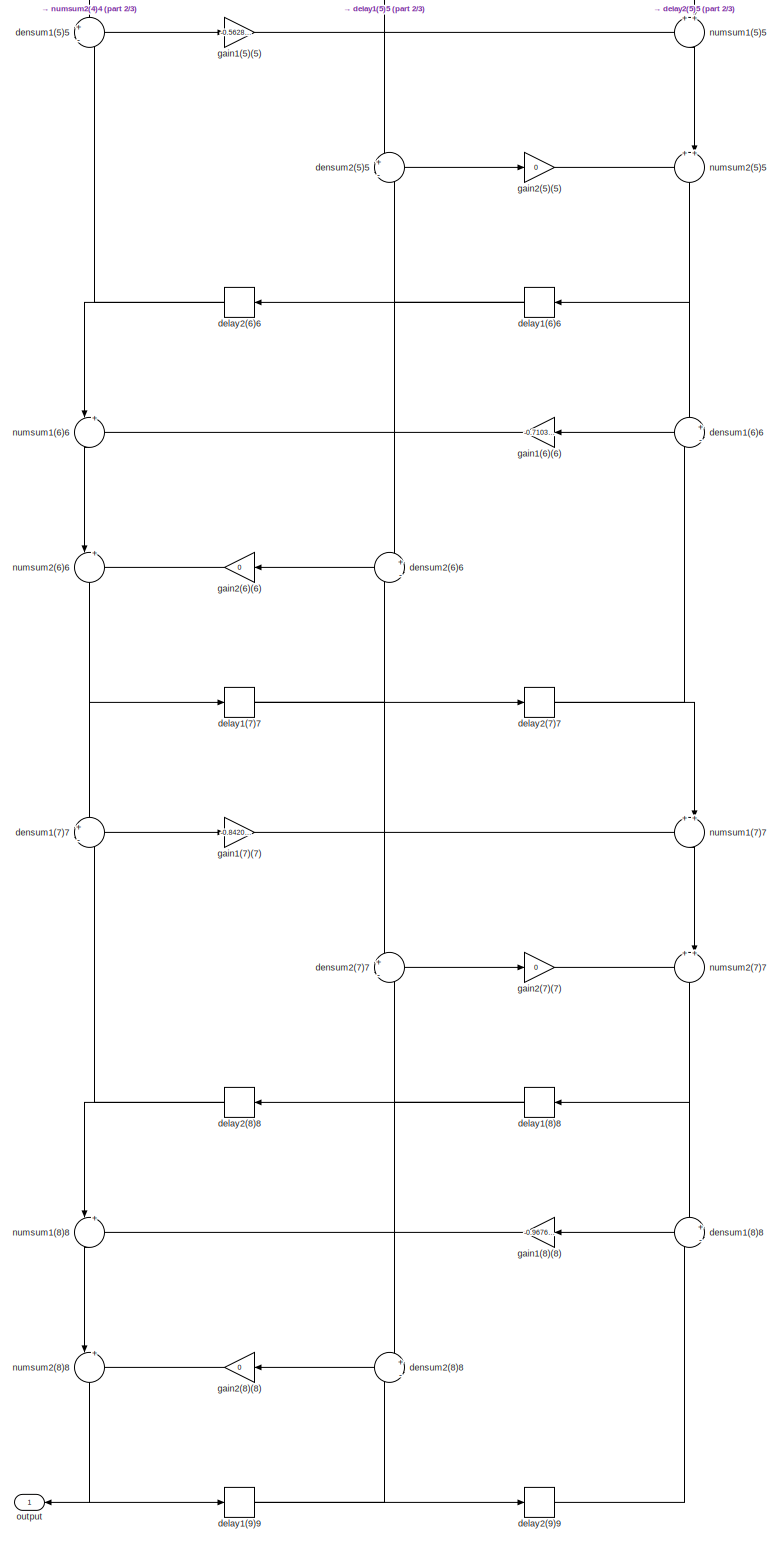
[diagram: Hilbert Filter1/Generated Filter Block/Stage1/Stage1 - part 3/3, full width, bottom band]
BLOCK [SubSystem] Hilbert Filter1/Generated Filter Block/Stage1/Stage1
  ErrorFcn = dspFilterRealizedInBasicElemsAlgLoopErrFcnCallback
  Ports = [1, 1]
  RequestExecContextInheritance = off
  Tag = FilterWizardSubSystem
  UserDataPersistent = on
BLOCK [Inport] Hilbert Filter1/Generated Filter Block/Stage1/Stage1/Input
  IconDisplay = Port number
BLOCK [Delay] Hilbert Filter1/Generated Filter Block/Stage1/Stage1/delay1(1)1
  DelayLength = 1
  InitialCondition = 0
  InputPortMap = u0
  Ports = [1, 1]
BLOCK [Delay] Hilbert Filter1/Generated Filter Block/Stage1/Stage1/delay1(2)2
  DelayLength = 1
  InitialCondition = 0
  InputPortMap = u0
  Ports = [1, 1]
BLOCK [Delay] Hilbert Filter1/Generated Filter Block/Stage1/Stage1/delay1(3)3
  DelayLength = 1
  InitialCondition = 0
  InputPortMap = u0
  Ports = [1, 1]
BLOCK [Delay] Hilbert Filter1/Generated Filter Block/Stage1/Stage1/delay1(4)4
  DelayLength = 1
  InitialCondition = 0
  InputPortMap = u0
  Ports = [1, 1]
BLOCK [Delay] Hilbert Filter1/Generated Filter Block/Stage1/Stage1/delay1(5)5
  DelayLength = 1
  InitialCondition = 0
  InputPortMap = u0
  Ports = [1, 1]
BLOCK [Delay] Hilbert Filter1/Generated Filter Block/Stage1/Stage1/delay1(6)6
  DelayLength = 1
  InitialCondition = 0
  InputPortMap = u0
  Ports = [1, 1]
BLOCK [Delay] Hilbert Filter1/Generated Filter Block/Stage1/Stage1/delay1(7)7
  DelayLength = 1
  InitialCondition = 0
  InputPortMap = u0
  Ports = [1, 1]
BLOCK [Delay] Hilbert Filter1/Generated Filter Block/Stage1/Stage1/delay1(8)8
  DelayLength = 1
  InitialCondition = 0
  InputPortMap = u0
  Ports = [1, 1]
BLOCK [Delay] Hilbert Filter1/Generated Filter Block/Stage1/Stage1/delay1(9)9
  DelayLength = 1
  InitialCondition = 0
  InputPortMap = u0
  Ports = [1, 1]
BLOCK [Delay] Hilbert Filter1/Generated Filter Block/Stage1/Stage1/delay2(1)1
  DelayLength = 1
  InitialCondition = 0
  InputPortMap = u0
  Ports = [1, 1]
BLOCK [Delay] Hilbert Filter1/Generated Filter Block/Stage1/Stage1/delay2(2)2
  DelayLength = 1
  InitialCondition = 0
  InputPortMap = u0
  Ports = [1, 1]
BLOCK [Delay] Hilbert Filter1/Generated Filter Block/Stage1/Stage1/delay2(3)3
  DelayLength = 1
  InitialCondition = 0
  InputPortMap = u0
  Ports = [1, 1]
BLOCK [Delay] Hilbert Filter1/Generated Filter Block/Stage1/Stage1/delay2(4)4
  DelayLength = 1
  InitialCondition = 0
  InputPortMap = u0
  Ports = [1, 1]
BLOCK [Delay] Hilbert Filter1/Generated Filter Block/Stage1/Stage1/delay2(5)5
  DelayLength = 1
  InitialCondition = 0
  InputPortMap = u0
  Ports = [1, 1]
BLOCK [Delay] Hilbert Filter1/Generated Filter Block/Stage1/Stage1/delay2(6)6
  DelayLength = 1
  InitialCondition = 0
  InputPortMap = u0
  Ports = [1, 1]
BLOCK [Delay] Hilbert Filter1/Generated Filter Block/Stage1/Stage1/delay2(7)7
  DelayLength = 1
  InitialCondition = 0
  InputPortMap = u0
  Ports = [1, 1]
BLOCK [Delay] Hilbert Filter1/Generated Filter Block/Stage1/Stage1/delay2(8)8
  DelayLength = 1
  InitialCondition = 0
  InputPortMap = u0
  Ports = [1, 1]
BLOCK [Delay] Hilbert Filter1/Generated Filter Block/Stage1/Stage1/delay2(9)9
  DelayLength = 1
  InitialCondition = 0
  InputPortMap = u0
  Ports = [1, 1]
BLOCK [Sum] Hilbert Filter1/Generated Filter Block/Stage1/Stage1/densum1(1)1
  IconShape = round
  InputSameDT = off
  Inputs = +|-
  Ports = [2, 1]
  RndMeth = Nearest
BLOCK [Sum] Hilbert Filter1/Generated Filter Block/Stage1/Stage1/densum1(2)2
  IconShape = round
  InputSameDT = off
  Inputs = +|-
  Ports = [2, 1]
  RndMeth = Nearest
BLOCK [Sum] Hilbert Filter1/Generated Filter Block/Stage1/Stage1/densum1(3)3
  IconShape = round
  InputSameDT = off
  Inputs = +|-
  Ports = [2, 1]
  RndMeth = Nearest
BLOCK [Sum] Hilbert Filter1/Generated Filter Block/Stage1/Stage1/densum1(4)4
  IconShape = round
  InputSameDT = off
  Inputs = +|-
  Ports = [2, 1]
  RndMeth = Nearest
BLOCK [Sum] Hilbert Filter1/Generated Filter Block/Stage1/Stage1/densum1(5)5
  IconShape = round
  InputSameDT = off
  Inputs = +|-
  Ports = [2, 1]
  RndMeth = Nearest
BLOCK [Sum] Hilbert Filter1/Generated Filter Block/Stage1/Stage1/densum1(6)6
  IconShape = round
  InputSameDT = off
  Inputs = +|-
  Ports = [2, 1]
  RndMeth = Nearest
BLOCK [Sum] Hilbert Filter1/Generated Filter Block/Stage1/Stage1/densum1(7)7
  IconShape = round
  InputSameDT = off
  Inputs = +|-
  Ports = [2, 1]
  RndMeth = Nearest
BLOCK [Sum] Hilbert Filter1/Generated Filter Block/Stage1/Stage1/densum1(8)8
  IconShape = round
  InputSameDT = off
  Inputs = +|-
  Ports = [2, 1]
  RndMeth = Nearest
BLOCK [Sum] Hilbert Filter1/Generated Filter Block/Stage1/Stage1/densum2(1)1
  IconShape = round
  InputSameDT = off
  Inputs = +|-
  Ports = [2, 1]
  RndMeth = Nearest
BLOCK [Sum] Hilbert Filter1/Generated Filter Block/Stage1/Stage1/densum2(2)2
  IconShape = round
  InputSameDT = off
  Inputs = +|-
  Ports = [2, 1]
  RndMeth = Nearest
BLOCK [Sum] Hilbert Filter1/Generated Filter Block/Stage1/Stage1/densum2(3)3
  IconShape = round
  InputSameDT = off
  Inputs = +|-
  Ports = [2, 1]
  RndMeth = Nearest
BLOCK [Sum] Hilbert Filter1/Generated Filter Block/Stage1/Stage1/densum2(4)4
  IconShape = round
  InputSameDT = off
  Inputs = +|-
  Ports = [2, 1]
  RndMeth = Nearest
BLOCK [Sum] Hilbert Filter1/Generated Filter Block/Stage1/Stage1/densum2(5)5
  IconShape = round
  InputSameDT = off
  Inputs = +|-
  Ports = [2, 1]
  RndMeth = Nearest
BLOCK [Sum] Hilbert Filter1/Generated Filter Block/Stage1/Stage1/densum2(6)6
  IconShape = round
  InputSameDT = off
  Inputs = +|-
  Ports = [2, 1]
  RndMeth = Nearest
BLOCK [Sum] Hilbert Filter1/Generated Filter Block/Stage1/Stage1/densum2(7)7
  IconShape = round
  InputSameDT = off
  Inputs = +|-
  Ports = [2, 1]
  RndMeth = Nearest
BLOCK [Sum] Hilbert Filter1/Generated Filter Block/Stage1/Stage1/densum2(8)8
  IconShape = round
  InputSameDT = off
  Inputs = +|-
  Ports = [2, 1]
  RndMeth = Nearest
BLOCK [Gain] Hilbert Filter1/Generated Filter Block/Stage1/Stage1/gain1(1)(1)
  Gain = -0.010950436973184801
  ParamDataTypeStr = double
  RndMeth = Nearest
BLOCK [Gain] Hilbert Filter1/Generated Filter Block/Stage1/Stage1/gain1(2)(2)
  Gain = -0.093334236255435646
  ParamDataTypeStr = double
  RndMeth = Nearest
BLOCK [Gain] Hilbert Filter1/Generated Filter Block/Stage1/Stage1/gain1(3)(3)
  Gain = -0.23410977281798603
  ParamDataTypeStr = double
  RndMeth = Nearest
BLOCK [Gain] Hilbert Filter1/Generated Filter Block/Stage1/Stage1/gain1(4)(4)
  Gain = -0.399691910960775
  ParamDataTypeStr = double
  RndMeth = Nearest
BLOCK [Gain] Hilbert Filter1/Generated Filter Block/Stage1/Stage1/gain1(5)(5)
  Gain = -0.56288910028092354
  ParamDataTypeStr = double
  RndMeth = Nearest
BLOCK [Gain] Hilbert Filter1/Generated Filter Block/Stage1/Stage1/gain1(6)(6)
  Gain = -0.71037779161235193
  ParamDataTypeStr = double
  RndMeth = Nearest
BLOCK [Gain] Hilbert Filter1/Generated Filter Block/Stage1/Stage1/gain1(7)(7)
  Gain = -0.84203409261411277
  ParamDataTypeStr = double
  RndMeth = Nearest
BLOCK [Gain] Hilbert Filter1/Generated Filter Block/Stage1/Stage1/gain1(8)(8)
  Gain = -0.96762108186982065
  ParamDataTypeStr = double
  RndMeth = Nearest
BLOCK [Gain] Hilbert Filter1/Generated Filter Block/Stage1/Stage1/gain2(1)(1)
  Gain = 0
  ParamDataTypeStr = double
  RndMeth = Nearest
BLOCK [Gain] Hilbert Filter1/Generated Filter Block/Stage1/Stage1/gain2(2)(2)
  Gain = 0
  ParamDataTypeStr = double
  RndMeth = Nearest
BLOCK [Gain] Hilbert Filter1/Generated Filter Block/Stage1/Stage1/gain2(3)(3)
  Gain = 0
  ParamDataTypeStr = double
  RndMeth = Nearest
BLOCK [Gain] Hilbert Filter1/Generated Filter Block/Stage1/Stage1/gain2(4)(4)
  Gain = 0
  ParamDataTypeStr = double
  RndMeth = Nearest
BLOCK [Gain] Hilbert Filter1/Generated Filter Block/Stage1/Stage1/gain2(5)(5)
  Gain = 0
  ParamDataTypeStr = double
  RndMeth = Nearest
BLOCK [Gain] Hilbert Filter1/Generated Filter Block/Stage1/Stage1/gain2(6)(6)
  Gain = 0
  ParamDataTypeStr = double
  RndMeth = Nearest
BLOCK [Gain] Hilbert Filter1/Generated Filter Block/Stage1/Stage1/gain2(7)(7)
  Gain = 0
  ParamDataTypeStr = double
  RndMeth = Nearest
BLOCK [Gain] Hilbert Filter1/Generated Filter Block/Stage1/Stage1/gain2(8)(8)
  Gain = 0
  ParamDataTypeStr = double
  RndMeth = Nearest
BLOCK [Sum] Hilbert Filter1/Generated Filter Block/Stage1/Stage1/numsum1(1)1
  IconShape = round
  InputSameDT = off
  Inputs = ++|
  Ports = [2, 1]
  RndMeth = Nearest
BLOCK [Sum] Hilbert Filter1/Generated Filter Block/Stage1/Stage1/numsum1(2)2
  IconShape = round
  InputSameDT = off
  Inputs = |++
  Ports = [2, 1]
  RndMeth = Nearest
BLOCK [Sum] Hilbert Filter1/Generated Filter Block/Stage1/Stage1/numsum1(3)3
  IconShape = round
  InputSameDT = off
  Inputs = ++|
  Ports = [2, 1]
  RndMeth = Nearest
BLOCK [Sum] Hilbert Filter1/Generated Filter Block/Stage1/Stage1/numsum1(4)4
  IconShape = round
  InputSameDT = off
  Inputs = |++
  Ports = [2, 1]
  RndMeth = Nearest
BLOCK [Sum] Hilbert Filter1/Generated Filter Block/Stage1/Stage1/numsum1(5)5
  IconShape = round
  InputSameDT = off
  Inputs = ++|
  Ports = [2, 1]
  RndMeth = Nearest
BLOCK [Sum] Hilbert Filter1/Generated Filter Block/Stage1/Stage1/numsum1(6)6
  IconShape = round
  InputSameDT = off
  Inputs = |++
  Ports = [2, 1]
  RndMeth = Nearest
BLOCK [Sum] Hilbert Filter1/Generated Filter Block/Stage1/Stage1/numsum1(7)7
  IconShape = round
  InputSameDT = off
  Inputs = ++|
  Ports = [2, 1]
  RndMeth = Nearest
BLOCK [Sum] Hilbert Filter1/Generated Filter Block/Stage1/Stage1/numsum1(8)8
  IconShape = round
  InputSameDT = off
  Inputs = |++
  Ports = [2, 1]
  RndMeth = Nearest
BLOCK [Sum] Hilbert Filter1/Generated Filter Block/Stage1/Stage1/numsum2(1)1
  IconShape = round
  InputSameDT = off
  Inputs = ++|
  Ports = [2, 1]
  RndMeth = Nearest
BLOCK [Sum] Hilbert Filter1/Generated Filter Block/Stage1/Stage1/numsum2(2)2
  IconShape = round
  InputSameDT = off
  Inputs = |++
  Ports = [2, 1]
  RndMeth = Nearest
BLOCK [Sum] Hilbert Filter1/Generated Filter Block/Stage1/Stage1/numsum2(3)3
  IconShape = round
  InputSameDT = off
  Inputs = ++|
  Ports = [2, 1]
  RndMeth = Nearest
BLOCK [Sum] Hilbert Filter1/Generated Filter Block/Stage1/Stage1/numsum2(4)4
  IconShape = round
  InputSameDT = off
  Inputs = |++
  Ports = [2, 1]
  RndMeth = Nearest
BLOCK [Sum] Hilbert Filter1/Generated Filter Block/Stage1/Stage1/numsum2(5)5
  IconShape = round
  InputSameDT = off
  Inputs = ++|
  Ports = [2, 1]
  RndMeth = Nearest
BLOCK [Sum] Hilbert Filter1/Generated Filter Block/Stage1/Stage1/numsum2(6)6
  IconShape = round
  InputSameDT = off
  Inputs = |++
  Ports = [2, 1]
  RndMeth = Nearest
BLOCK [Sum] Hilbert Filter1/Generated Filter Block/Stage1/Stage1/numsum2(7)7
  IconShape = round
  InputSameDT = off
  Inputs = ++|
  Ports = [2, 1]
  RndMeth = Nearest
BLOCK [Sum] Hilbert Filter1/Generated Filter Block/Stage1/Stage1/numsum2(8)8
  IconShape = round
  InputSameDT = off
  Inputs = |++
  Ports = [2, 1]
  RndMeth = Nearest
BLOCK [Outport] Hilbert Filter1/Generated Filter Block/Stage1/Stage1/output
  IconDisplay = Port number
BLOCK [SubSystem] Hilbert Filter1/Generated Filter Block/Stage1/Stage2
  Ports = [1, 1]
  RequestExecContextInheritance = off
  Tag = FilterWizardSubSystem
  UserDataPersistent = on
BLOCK [Inport] Hilbert Filter1/Generated Filter Block/Stage1/Stage2/Input
  IconDisplay = Port number
BLOCK [Outport] Hilbert Filter1/Generated Filter Block/Stage1/Stage2/Output
  IconDisplay = Port number
BLOCK [SubSystem] Hilbert Filter1/Generated Filter Block/Stage1/Stage2/Stage1
  ErrorFcn = dspFilterRealizedInBasicElemsAlgLoopErrFcnCallback
  Ports = [1, 1]
  RequestExecContextInheritance = off
  Tag = FilterWizardSubSystem
  UserDataPersistent = on
BLOCK [Delay] Hilbert Filter1/Generated Filter Block/Stage1/Stage2/Stage1/BodyDelay2
  DelayLength = 1
  InitialCondition = 0
  InputPortMap = u0
  Ports = [1, 1]
BLOCK [Sum] Hilbert Filter1/Generated Filter Block/Stage1/Stage2/Stage1/BodyLSum2
  IconShape = round
  InputSameDT = off
  Inputs = ++|
  Ports = [2, 1]
  RndMeth = Nearest
BLOCK [Inport] Hilbert Filter1/Generated Filter Block/Stage1/Stage2/Stage1/Input
  IconDisplay = Port number
BLOCK [Outport] Hilbert Filter1/Generated Filter Block/Stage1/Stage2/Stage1/Output
  IconDisplay = Port number
BLOCK [Gain] Hilbert Filter1/Generated Filter Block/Stage1/Stage2/Stage1/b(1)
  Gain = 0
  ParamDataTypeStr = double
  RndMeth = Nearest
BLOCK [Gain] Hilbert Filter1/Generated Filter Block/Stage1/Stage2/Stage1/b(2)
  Gain = 0+1i
  ParamDataTypeStr = double
  RndMeth = Nearest
BLOCK [SubSystem] Hilbert Filter1/Generated Filter Block/Stage1/Stage2/Stage2
  Ports = [1, 1]
  RequestExecContextInheritance = off
  Tag = FilterWizardSubSystem
  UserDataPersistent = on
BLOCK [Inport] Hilbert Filter1/Generated Filter Block/Stage1/Stage2/Stage2/Input
  IconDisplay = Port number
BLOCK [Outport] Hilbert Filter1/Generated Filter Block/Stage1/Stage2/Stage2/Output
  IconDisplay = Port number
BLOCK [SubSystem] Hilbert Filter1/Generated Filter Block/Stage1/Stage2/Stage2/Stage1
  ErrorFcn = dspFilterRealizedInBasicElemsAlgLoopErrFcnCallback
  Ports = [1, 1]
  RequestExecContextInheritance = off
  Tag = FilterWizardSubSystem
  UserDataPersistent = on
BLOCK [Inport] Hilbert Filter1/Generated Filter Block/Stage1/Stage2/Stage2/Stage1/Input
  IconDisplay = Port number
BLOCK [Outport] Hilbert Filter1/Generated Filter Block/Stage1/Stage2/Stage2/Stage1/Output
  IconDisplay = Port number
BLOCK [Gain] Hilbert Filter1/Generated Filter Block/Stage1/Stage2/Stage2/Stage1/g(1)
  Gain = -1
  ParamDataTypeStr = double
  RndMeth = Nearest
BLOCK [SubSystem] Hilbert Filter1/Generated Filter Block/Stage1/Stage2/Stage2/Stage2
  ErrorFcn = dspFilterRealizedInBasicElemsAlgLoopErrFcnCallback
  Ports = [1, 1]
  RequestExecContextInheritance = off
  Tag = FilterWizardSubSystem
  UserDataPersistent = on
BLOCK [Inport] Hilbert Filter1/Generated Filter Block/Stage1/Stage2/Stage2/Stage2/Input
  IconDisplay = Port number
BLOCK [Delay] Hilbert Filter1/Generated Filter Block/Stage1/Stage2/Stage2/Stage2/delay1(1)1
  DelayLength = 1
  InitialCondition = 0
  InputPortMap = u0
  Ports = [1, 1]
BLOCK [Delay] Hilbert Filter1/Generated Filter Block/Stage1/Stage2/Stage2/Stage2/delay1(2)2
  DelayLength = 1
  InitialCondition = 0
  InputPortMap = u0
  Ports = [1, 1]
BLOCK [Delay] Hilbert Filter1/Generated Filter Block/Stage1/Stage2/Stage2/Stage2/delay1(3)3
  DelayLength = 1
  InitialCondition = 0
  InputPortMap = u0
  Ports = [1, 1]
BLOCK [Delay] Hilbert Filter1/Generated Filter Block/Stage1/Stage2/Stage2/Stage2/delay1(4)4
  DelayLength = 1
  InitialCondition = 0
  InputPortMap = u0
  Ports = [1, 1]
BLOCK [Delay] Hilbert Filter1/Generated Filter Block/Stage1/Stage2/Stage2/Stage2/delay1(5)5
  DelayLength = 1
  InitialCondition = 0
  InputPortMap = u0
  Ports = [1, 1]
BLOCK [Delay] Hilbert Filter1/Generated Filter Block/Stage1/Stage2/Stage2/Stage2/delay1(6)6
  DelayLength = 1
  InitialCondition = 0
  InputPortMap = u0
  Ports = [1, 1]
BLOCK [Delay] Hilbert Filter1/Generated Filter Block/Stage1/Stage2/Stage2/Stage2/delay1(7)7
  DelayLength = 1
  InitialCondition = 0
  InputPortMap = u0
  Ports = [1, 1]
BLOCK [Delay] Hilbert Filter1/Generated Filter Block/Stage1/Stage2/Stage2/Stage2/delay1(8)8
  DelayLength = 1
  InitialCondition = 0
  InputPortMap = u0
  Ports = [1, 1]
BLOCK [Delay] Hilbert Filter1/Generated Filter Block/Stage1/Stage2/Stage2/Stage2/delay2(1)1
  DelayLength = 1
  InitialCondition = 0
  InputPortMap = u0
  Ports = [1, 1]
BLOCK [Delay] Hilbert Filter1/Generated Filter Block/Stage1/Stage2/Stage2/Stage2/delay2(2)2
  DelayLength = 1
  InitialCondition = 0
  InputPortMap = u0
  Ports = [1, 1]
BLOCK [Delay] Hilbert Filter1/Generated Filter Block/Stage1/Stage2/Stage2/Stage2/delay2(3)3
  DelayLength = 1
  InitialCondition = 0
  InputPortMap = u0
  Ports = [1, 1]
BLOCK [Delay] Hilbert Filter1/Generated Filter Block/Stage1/Stage2/Stage2/Stage2/delay2(4)4
  DelayLength = 1
  InitialCondition = 0
  InputPortMap = u0
  Ports = [1, 1]
BLOCK [Delay] Hilbert Filter1/Generated Filter Block/Stage1/Stage2/Stage2/Stage2/delay2(5)5
  DelayLength = 1
  InitialCondition = 0
  InputPortMap = u0
  Ports = [1, 1]
BLOCK [Delay] Hilbert Filter1/Generated Filter Block/Stage1/Stage2/Stage2/Stage2/delay2(6)6
  DelayLength = 1
  InitialCondition = 0
  InputPortMap = u0
  Ports = [1, 1]
BLOCK [Delay] Hilbert Filter1/Generated Filter Block/Stage1/Stage2/Stage2/Stage2/delay2(7)7
  DelayLength = 1
  InitialCondition = 0
  InputPortMap = u0
  Ports = [1, 1]
BLOCK [Delay] Hilbert Filter1/Generated Filter Block/Stage1/Stage2/Stage2/Stage2/delay2(8)8
  DelayLength = 1
  InitialCondition = 0
  InputPortMap = u0
  Ports = [1, 1]
BLOCK [Sum] Hilbert Filter1/Generated Filter Block/Stage1/Stage2/Stage2/Stage2/densum1(1)1
  IconShape = round
  InputSameDT = off
  Inputs = +|-
  Ports = [2, 1]
  RndMeth = Nearest
BLOCK [Sum] Hilbert Filter1/Generated Filter Block/Stage1/Stage2/Stage2/Stage2/densum1(2)2
  IconShape = round
  InputSameDT = off
  Inputs = +|-
  Ports = [2, 1]
  RndMeth = Nearest
BLOCK [Sum] Hilbert Filter1/Generated Filter Block/Stage1/Stage2/Stage2/Stage2/densum1(3)3
  IconShape = round
  InputSameDT = off
  Inputs = +|-
  Ports = [2, 1]
  RndMeth = Nearest
BLOCK [Sum] Hilbert Filter1/Generated Filter Block/Stage1/Stage2/Stage2/Stage2/densum1(4)4
  IconShape = round
  InputSameDT = off
  Inputs = +|-
  Ports = [2, 1]
  RndMeth = Nearest
BLOCK [Sum] Hilbert Filter1/Generated Filter Block/Stage1/Stage2/Stage2/Stage2/densum1(5)5
  IconShape = round
  InputSameDT = off
  Inputs = +|-
  Ports = [2, 1]
  RndMeth = Nearest
BLOCK [Sum] Hilbert Filter1/Generated Filter Block/Stage1/Stage2/Stage2/Stage2/densum1(6)6
  IconShape = round
  InputSameDT = off
  Inputs = +|-
  Ports = [2, 1]
  RndMeth = Nearest
BLOCK [Sum] Hilbert Filter1/Generated Filter Block/Stage1/Stage2/Stage2/Stage2/densum1(7)7
  IconShape = round
  InputSameDT = off
  Inputs = +|-
  Ports = [2, 1]
  RndMeth = Nearest
BLOCK [Sum] Hilbert Filter1/Generated Filter Block/Stage1/Stage2/Stage2/Stage2/densum2(1)1
  IconShape = round
  InputSameDT = off
  Inputs = +|-
  Ports = [2, 1]
  RndMeth = Nearest
BLOCK [Sum] Hilbert Filter1/Generated Filter Block/Stage1/Stage2/Stage2/Stage2/densum2(2)2
  IconShape = round
  InputSameDT = off
  Inputs = +|-
  Ports = [2, 1]
  RndMeth = Nearest
BLOCK [Sum] Hilbert Filter1/Generated Filter Block/Stage1/Stage2/Stage2/Stage2/densum2(3)3
  IconShape = round
  InputSameDT = off
  Inputs = +|-
  Ports = [2, 1]
  RndMeth = Nearest
BLOCK [Sum] Hilbert Filter1/Generated Filter Block/Stage1/Stage2/Stage2/Stage2/densum2(4)4
  IconShape = round
  InputSameDT = off
  Inputs = +|-
  Ports = [2, 1]
  RndMeth = Nearest
BLOCK [Sum] Hilbert Filter1/Generated Filter Block/Stage1/Stage2/Stage2/Stage2/densum2(5)5
  IconShape = round
  InputSameDT = off
  Inputs = +|-
  Ports = [2, 1]
  RndMeth = Nearest
BLOCK [Sum] Hilbert Filter1/Generated Filter Block/Stage1/Stage2/Stage2/Stage2/densum2(6)6
  IconShape = round
  InputSameDT = off
  Inputs = +|-
  Ports = [2, 1]
  RndMeth = Nearest
BLOCK [Sum] Hilbert Filter1/Generated Filter Block/Stage1/Stage2/Stage2/Stage2/densum2(7)7
  IconShape = round
  InputSameDT = off
  Inputs = +|-
  Ports = [2, 1]
  RndMeth = Nearest
BLOCK [Gain] Hilbert Filter1/Generated Filter Block/Stage1/Stage2/Stage2/Stage2/gain1(1)(1)
  Gain = -0.042904944031649322
  ParamDataTypeStr = double
  RndMeth = Nearest
BLOCK [Gain] Hilbert Filter1/Generated Filter Block/Stage1/Stage2/Stage2/Stage2/gain1(2)(2)
  Gain = -0.15851285525238301
  ParamDataTypeStr = double
  RndMeth = Nearest
BLOCK [Gain] Hilbert Filter1/Generated Filter Block/Stage1/Stage2/Stage2/Stage2/gain1(3)(3)
  Gain = -0.31578769921985456
  ParamDataTypeStr = double
  RndMeth = Nearest
BLOCK [Gain] Hilbert Filter1/Generated Filter Block/Stage1/Stage2/Stage2/Stage2/gain1(4)(4)
  Gain = -0.48276583745472768
  ParamDataTypeStr = double
  RndMeth = Nearest
BLOCK [Gain] Hilbert Filter1/Generated Filter Block/Stage1/Stage2/Stage2/Stage2/gain1(5)(5)
  Gain = -0.63887449831122922
  ParamDataTypeStr = double
  RndMeth = Nearest
BLOCK [Gain] Hilbert Filter1/Generated Filter Block/Stage1/Stage2/Stage2/Stage2/gain1(6)(6)
  Gain = -0.77777288596986116
  ParamDataTypeStr = double
  RndMeth = Nearest
BLOCK [Gain] Hilbert Filter1/Generated Filter Block/Stage1/Stage2/Stage2/Stage2/gain1(7)(7)
  Gain = -0.90465457400821292
  ParamDataTypeStr = double
  RndMeth = Nearest
BLOCK [Gain] Hilbert Filter1/Generated Filter Block/Stage1/Stage2/Stage2/Stage2/gain2(1)(1)
  Gain = 0
  ParamDataTypeStr = double
  RndMeth = Nearest
BLOCK [Gain] Hilbert Filter1/Generated Filter Block/Stage1/Stage2/Stage2/Stage2/gain2(2)(2)
  Gain = 0
  ParamDataTypeStr = double
  RndMeth = Nearest
BLOCK [Gain] Hilbert Filter1/Generated Filter Block/Stage1/Stage2/Stage2/Stage2/gain2(3)(3)
  Gain = 0
  ParamDataTypeStr = double
  RndMeth = Nearest
BLOCK [Gain] Hilbert Filter1/Generated Filter Block/Stage1/Stage2/Stage2/Stage2/gain2(4)(4)
  Gain = 0
  ParamDataTypeStr = double
  RndMeth = Nearest
BLOCK [Gain] Hilbert Filter1/Generated Filter Block/Stage1/Stage2/Stage2/Stage2/gain2(5)(5)
  Gain = 0
  ParamDataTypeStr = double
  RndMeth = Nearest
BLOCK [Gain] Hilbert Filter1/Generated Filter Block/Stage1/Stage2/Stage2/Stage2/gain2(6)(6)
  Gain = 0
  ParamDataTypeStr = double
  RndMeth = Nearest
BLOCK [Gain] Hilbert Filter1/Generated Filter Block/Stage1/Stage2/Stage2/Stage2/gain2(7)(7)
  Gain = 0
  ParamDataTypeStr = double
  RndMeth = Nearest
BLOCK [Sum] Hilbert Filter1/Generated Filter Block/Stage1/Stage2/Stage2/Stage2/numsum1(1)1
  IconShape = round
  InputSameDT = off
  Inputs = ++|
  Ports = [2, 1]
  RndMeth = Nearest
BLOCK [Sum] Hilbert Filter1/Generated Filter Block/Stage1/Stage2/Stage2/Stage2/numsum1(2)2
  IconShape = round
  InputSameDT = off
  Inputs = |++
  Ports = [2, 1]
  RndMeth = Nearest
BLOCK [Sum] Hilbert Filter1/Generated Filter Block/Stage1/Stage2/Stage2/Stage2/numsum1(3)3
  IconShape = round
  InputSameDT = off
  Inputs = ++|
  Ports = [2, 1]
  RndMeth = Nearest
BLOCK [Sum] Hilbert Filter1/Generated Filter Block/Stage1/Stage2/Stage2/Stage2/numsum1(4)4
  IconShape = round
  InputSameDT = off
  Inputs = |++
  Ports = [2, 1]
  RndMeth = Nearest
BLOCK [Sum] Hilbert Filter1/Generated Filter Block/Stage1/Stage2/Stage2/Stage2/numsum1(5)5
  IconShape = round
  InputSameDT = off
  Inputs = ++|
  Ports = [2, 1]
  RndMeth = Nearest
BLOCK [Sum] Hilbert Filter1/Generated Filter Block/Stage1/Stage2/Stage2/Stage2/numsum1(6)6
  IconShape = round
  InputSameDT = off
  Inputs = |++
  Ports = [2, 1]
  RndMeth = Nearest
BLOCK [Sum] Hilbert Filter1/Generated Filter Block/Stage1/Stage2/Stage2/Stage2/numsum1(7)7
  IconShape = round
  InputSameDT = off
  Inputs = ++|
  Ports = [2, 1]
  RndMeth = Nearest
BLOCK [Sum] Hilbert Filter1/Generated Filter Block/Stage1/Stage2/Stage2/Stage2/numsum2(1)1
  IconShape = round
  InputSameDT = off
  Inputs = ++|
  Ports = [2, 1]
  RndMeth = Nearest
BLOCK [Sum] Hilbert Filter1/Generated Filter Block/Stage1/Stage2/Stage2/Stage2/numsum2(2)2
  IconShape = round
  InputSameDT = off
  Inputs = |++
  Ports = [2, 1]
  RndMeth = Nearest
BLOCK [Sum] Hilbert Filter1/Generated Filter Block/Stage1/Stage2/Stage2/Stage2/numsum2(3)3
  IconShape = round
  InputSameDT = off
  Inputs = ++|
  Ports = [2, 1]
  RndMeth = Nearest
BLOCK [Sum] Hilbert Filter1/Generated Filter Block/Stage1/Stage2/Stage2/Stage2/numsum2(4)4
  IconShape = round
  InputSameDT = off
  Inputs = |++
  Ports = [2, 1]
  RndMeth = Nearest
BLOCK [Sum] Hilbert Filter1/Generated Filter Block/Stage1/Stage2/Stage2/Stage2/numsum2(5)5
  IconShape = round
  InputSameDT = off
  Inputs = ++|
  Ports = [2, 1]
  RndMeth = Nearest
BLOCK [Sum] Hilbert Filter1/Generated Filter Block/Stage1/Stage2/Stage2/Stage2/numsum2(6)6
  IconShape = round
  InputSameDT = off
  Inputs = |++
  Ports = [2, 1]
  RndMeth = Nearest
BLOCK [Sum] Hilbert Filter1/Generated Filter Block/Stage1/Stage2/Stage2/Stage2/numsum2(7)7
  IconShape = round
  InputSameDT = off
  Inputs = ++|
  Ports = [2, 1]
  RndMeth = Nearest
BLOCK [Outport] Hilbert Filter1/Generated Filter Block/Stage1/Stage2/Stage2/Stage2/output
  IconDisplay = Port number
BLOCK [Sum] Hilbert Filter1/Generated Filter Block/Stage1/Sum1
  IconShape = round
  InputSameDT = off
  Inputs = |++
  Ports = [2, 1]
  RndMeth = Nearest
BLOCK [SubSystem] Hilbert Filter1/Generated Filter Block/Stage2
  ErrorFcn = dspFilterRealizedInBasicElemsAlgLoopErrFcnCallback
  Ports = [1, 1]
  RequestExecContextInheritance = off
  Tag = FilterWizardSubSystem
  UserDataPersistent = on
BLOCK [Inport] Hilbert Filter1/Generated Filter Block/Stage2/Input
  IconDisplay = Port number
BLOCK [Outport] Hilbert Filter1/Generated Filter Block/Stage2/Output
  IconDisplay = Port number
BLOCK [Gain] Hilbert Filter1/Generated Filter Block/Stage2/g(1)
  Gain = 0.5
  ParamDataTypeStr = double
  RndMeth = Nearest
BLOCK [Inport] Hilbert Filter1/In
  IconDisplay = Port number
BLOCK [Outport] Hilbert Filter1/Out
  IconDisplay = Port number
BLOCK [Reference] Phase// Frequency Offset  REF=commrflib2/Phase//
Frequency
Offset
  Commented = on
  Ports = [1, 1]
  SourceBlock = commrflib2/Phase//\nFrequency\nOffset
  SourceType = Phase/Frequency Offset
  freqOffset = 20000
  freqPort = off
  phaseOffset = 0
BLOCK [Product] Product
  Commented = on
  InputSameDT = off
  OutDataTypeStr = Inherit: Inherit via internal rule
  Ports = [2, 1]
  RndMeth = Floor
  SaturateOnIntegerOverflow = off
BLOCK [RealImagToComplex] Real-Imag to Complex1
  Ports = [2, 1]
BLOCK [RealImagToComplex] Real-Imag to Complex2
  Ports = [2, 1]
BLOCK [RealImagToComplex] Real-Imag to Complex3
  Ports = [2, 1]
BLOCK [Sin] Sine Wave1
  Frequency = 20000*2*pi
  Phase = 2*pi*90/360
  Ports = [0, 1]
  SampleTime = 2.00E-06
BLOCK [Sin] Sine Wave2
  Frequency = 20000*2*pi
  Ports = [0, 1]
  SampleTime = 2.00E-06
BLOCK [Sin] Sine Wave3
  Frequency = 10*2*3.14*1000
  Ports = [0, 1]
  SampleTime = 2.00E-06
BLOCK [Sin] Sine Wave4
  Frequency = 10*2*3.14*1000
  Ports = [0, 1]
  SampleTime = 2.00E-06
BLOCK [Sin] Sine Wave5
  Frequency = 10*2*3.14*1000
  Ports = [0, 1]
  SampleTime = 2.00E-06
BLOCK [Sin] Sine Wave6
  Frequency = 10*2*3.14*1000
  Ports = [0, 1]
  SampleTime = 2.00E-06
BLOCK [Sin] Sine Wave7
  Frequency = 10*2*3.14*1000
  Phase = 2*pi*90/360
  Ports = [0, 1]
  SampleTime = 2.00E-06
BLOCK [SpectrumAnalyzer] Spectrum Analyzer
  Ports = [1]
  ScopeSpecificationString = spbscopes.SpectrumAnalyzerBlockCfg('CurrentConfiguration', extmgr.ConfigurationSet(extmgr.Configuration('Core','General UI',true),extmgr.Configuration('Core','Source UI',true),extmgr.Configuration('Sources','WiredSimulink',true),extmgr.Configuration('Visuals','Spectrum',true,'AxesProperties',struct('Color',[0 0 0],'XColor',[0.686274509803922 0.686274509803922 0.686274509803922],'YColor',[0.6862745...<+6374ch>
BLOCK [ToWorkspace] To Workspace
  Commented = on
  FixptAsFi = on
  MaxDataPoints = inf
  Ports = [1]
  SampleTime = -1
  Save2DSignal = 3-D array (concatenate along third dimension)
  VariableName = rout
ANNOTATION (root): two tones
NET Hilbert Filter1:1 -> Constellation Diagram2:1, Spectrum Analyzer:1
LINE Hilbert Filter:1 -> Hilbert Filter1:1
LINE Real-Imag to Complex1:1 -> Product:2
NET Real-Imag to Complex2:1 -> Phase// Frequency Offset:1, Product:1
LINE Real-Imag to Complex3:1 -> Constellation Diagram1:1
LINE Sine Wave1:1 -> Real-Imag to Complex1:1
LINE Sine Wave2:1 -> Real-Imag to Complex1:2
LINE Sine Wave3:1 -> Real-Imag to Complex2:2
LINE Sine Wave4:1 -> Real-Imag to Complex3:2
LINE Sine Wave5:1 -> Real-Imag to Complex2:1
NET Sine Wave6:1 -> Hilbert Filter:1, To Workspace:1
LINE Sine Wave7:1 -> Real-Imag to Complex3:1
note: NET lines group one-source signal fan-out (src -> all destinations, sorted); 1:1 wires keep LINE
